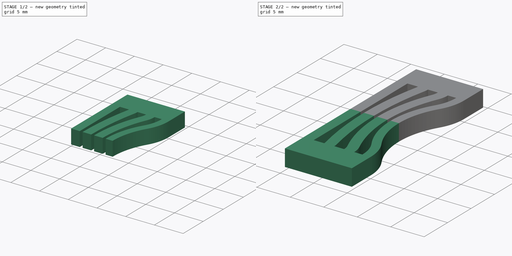
[diagram: build sequence overview — one tinted view per stage of 2, left to right]
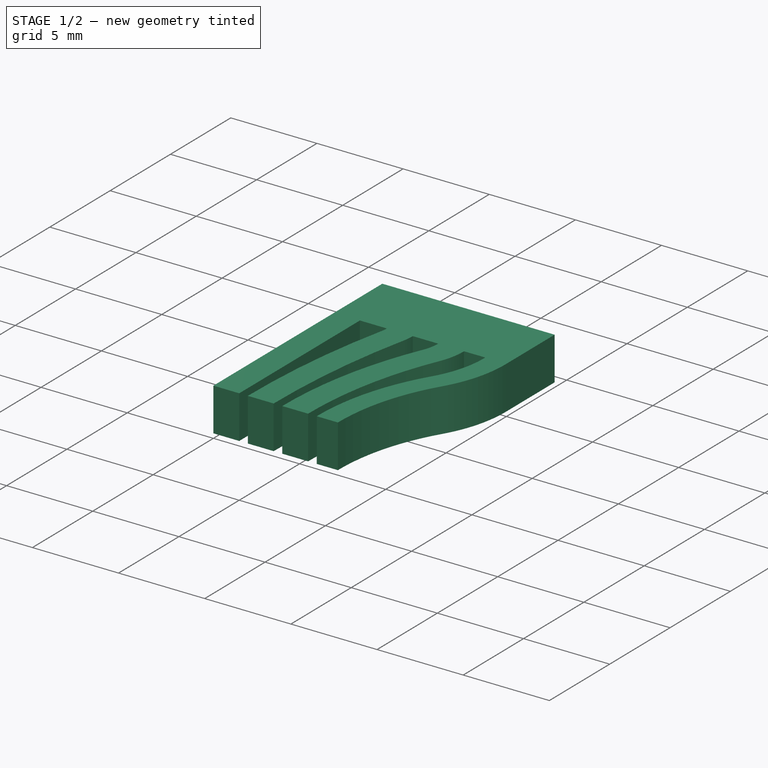
[diagram: stage 1 of 2 — iso view after this stage's code; geometry added in this stage tinted green]
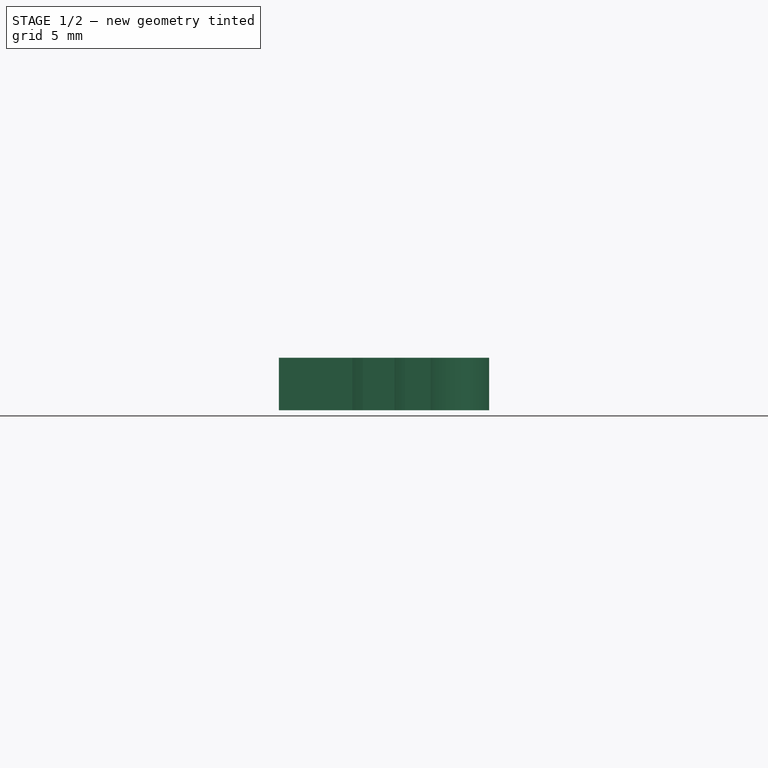
[diagram: stage 1 of 2 — front view after this stage's code; geometry added in this stage tinted green]
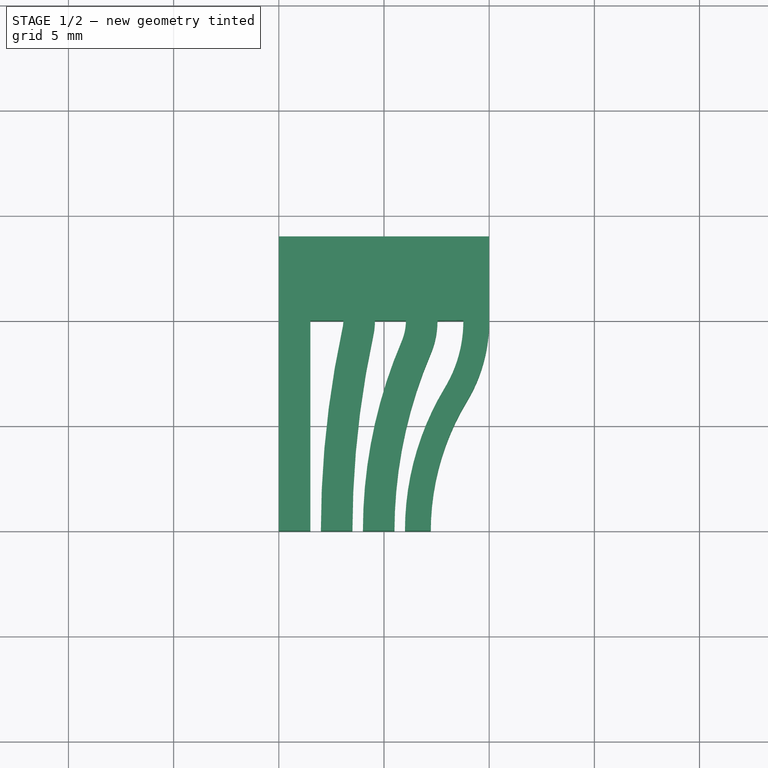
[diagram: stage 1 of 2 — top view after this stage's code; geometry added in this stage tinted green]
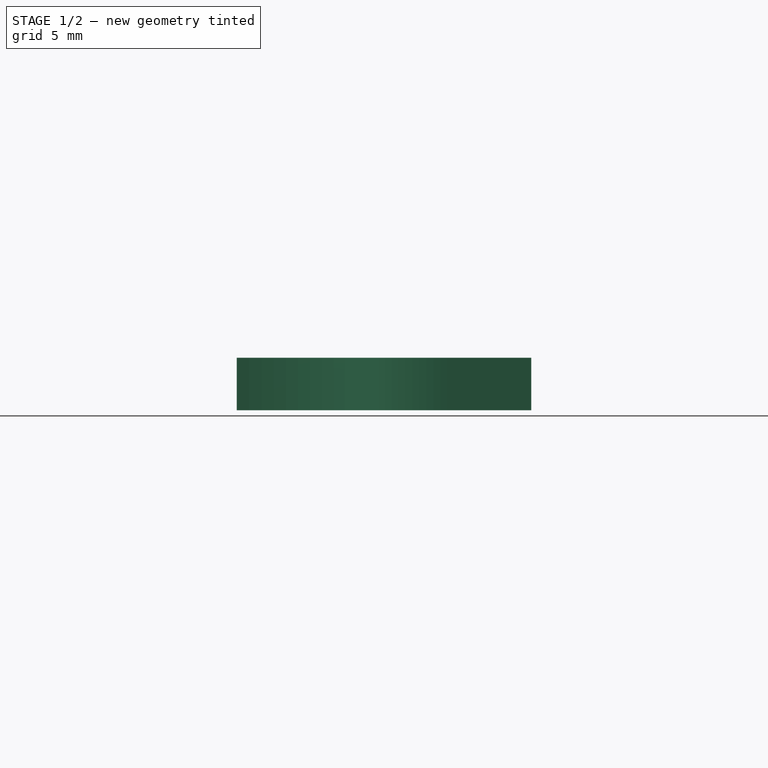
[diagram: stage 1 of 2 — right view after this stage's code; geometry added in this stage tinted green]
FCSTD DOCUMENT  (FreeCAD 0.20R29177 +426 (Git))
Label: SpringTest
License: All rights reserved
LicenseURL: http://en.wikipedia.org/wiki/All_rights_reserved
objects: Sketcher::SketchObject×1, PartDesign::Pad×1, PartDesign::Mirrored×1, PartDesign::Body×1
note: 5 computed .brp shape members not serialized (recipe doc carries the construction recipe); baked Part::Feature solids carry a one-line shape summary decoded from their .brp

FEATURE [Sketcher::SketchObject] Sketch
  FullyConstrained = false
  MapMode = 5
  Support = -> [XY_Plane]
  sketch-geometry (34):
    g0: LineSegment StartX=-3.5 StartY=9.91122e-06 StartZ=0 EndX=-5 EndY=0 EndZ=0
    g1: LineSegment StartX=-5 StartY=0 StartZ=0 EndX=-5 EndY=10 EndZ=0
    g2: LineSegment StartX=-5 StartY=14 StartZ=0 EndX=5 EndY=14 EndZ=0
    g3: LineSegment StartX=5 StartY=14 StartZ=0 EndX=5 EndY=10.0178 EndZ=0
    g4: LineSegment StartX=3.77247 StartY=10.0083 StartZ=0 EndX=2.54224 EndY=10 EndZ=0
    g5: LineSegment StartX=-5 StartY=10 StartZ=0 EndX=-5 EndY=14 EndZ=0
    g6: LineSegment StartX=-3.5 StartY=10 StartZ=0 EndX=-3.5 EndY=9.91122e-06 EndZ=0
    g7: ArcOfCircle CenterX=14.1448 CenterY=0 CenterZ=0 NormalX=0 NormalY=0 NormalZ=1 AngleXU=0 Radius=13.1488 StartAngle=2.59819 EndAngle=3.14159
    g8: ArcOfCircle CenterX=-2.35482 CenterY=9.96678 CenterZ=0 NormalX=0 NormalY=0 NormalZ=1 AngleXU=0 Radius=6.12743 StartAngle=5.73978 EndAngle=6.28997
    g9: ArcOfCircle CenterX=14.1448 CenterY=0 CenterZ=0 NormalX=0 NormalY=0 NormalZ=1 AngleXU=0 Radius=11.9213 StartAngle=2.59819 EndAngle=3.14159
    g10: ArcOfCircle CenterX=-2.35482 CenterY=9.96678 CenterZ=0 NormalX=0 NormalY=0 NormalZ=1 AngleXU=0 Radius=7.355 StartAngle=5.73978 EndAngle=6.29012
    g11: LineSegment StartX=3.5 StartY=10.0178 StartZ=0 EndX=5 EndY=10.0178 EndZ=0
    g12: LineSegment StartX=-5 StartY=10 StartZ=0 EndX=-3.5 EndY=10 EndZ=0
    g13: LineSegment StartX=2.88999 StartY=6.7986 StartZ=0 EndX=3.94073 EndY=6.16388 EndZ=0
    g14: LineSegment StartX=0.995967 StartY=1.6e-15 StartZ=0 EndX=2.22353 EndY=0 EndZ=0
    g15: ArcOfCircle CenterX=-1.48051 CenterY=10 CenterZ=0 NormalX=0 NormalY=0 NormalZ=1 AngleXU=0 Radius=2.52275 StartAngle=5.87976 EndAngle=6.28319
    g16: ArcOfCircle CenterX=21.9477 CenterY=0 CenterZ=0 NormalX=0 NormalY=0 NormalZ=1 AngleXU=0 Radius=22.9504 StartAngle=2.73817 EndAngle=3.14159
    g17: ArcOfCircle CenterX=-1.48051 CenterY=10 CenterZ=0 NormalX=0 NormalY=0 NormalZ=1 AngleXU=0 Radius=4.02275 StartAngle=5.87976 EndAngle=6.28319
    g18: ArcOfCircle CenterX=21.9477 CenterY=0 CenterZ=0 NormalX=0 NormalY=0 NormalZ=1 AngleXU=0 Radius=21.4504 StartAngle=2.73817 EndAngle=3.14159
    g19: LineSegment StartX=2.21931 StartY=8.42079 StartZ=0 EndX=0.839722 EndY=9.00964 EndZ=0
    g20: LineSegment StartX=2.54224 StartY=10 StartZ=0 EndX=1.04224 EndY=10 EndZ=0
    g21: LineSegment StartX=0.497311 StartY=2.6e-15 StartZ=0 EndX=-1.00269 EndY=2.6e-15 EndZ=0
    g22: ArcOfCircle CenterX=-3.5747 CenterY=10 CenterZ=0 NormalX=0 NormalY=0 NormalZ=1 AngleXU=0 Radius=3.14316 StartAngle=6.07003 EndAngle=6.28319
    g23: ArcOfCircle CenterX=42.6279 CenterY=0 CenterZ=0 NormalX=0 NormalY=0 NormalZ=1 AngleXU=0 Radius=44.1292 StartAngle=2.92844 EndAngle=3.14159
    g24: ArcOfCircle CenterX=-3.5747 CenterY=10 CenterZ=0 NormalX=0 NormalY=0 NormalZ=1 AngleXU=0 Radius=1.64316 StartAngle=6.07003 EndAngle=6.28319
    g25: ArcOfCircle CenterX=42.6279 CenterY=0 CenterZ=0 NormalX=0 NormalY=0 NormalZ=1 AngleXU=0 Radius=45.6292 StartAngle=2.92844 EndAngle=3.14159
    g26: LineSegment StartX=1.04224 StartY=10 StartZ=0 EndX=-0.431539 EndY=10 EndZ=0
    g27: LineSegment StartX=-3.5 StartY=10 StartZ=0 EndX=-1.93154 EndY=10 EndZ=0
    g28: LineSegment StartX=-1.93154 StartY=10 StartZ=0 EndX=-0.431539 EndY=10 EndZ=0
    g29: LineSegment StartX=-3.00134 StartY=0 StartZ=0 EndX=-1.50134 EndY=0 EndZ=0
    g30: LineSegment StartX=-0.502671 StartY=9.3351 StartZ=0 EndX=-1.96872 EndY=9.65241 EndZ=0
    g31: LineSegment StartX=-3.5 StartY=9.91122e-06 StartZ=0 EndX=-3.00134 EndY=0 EndZ=0
    g32: LineSegment StartX=-1.50134 StartY=0 StartZ=0 EndX=-1.00269 EndY=2.6e-15 EndZ=0
    g33: LineSegment StartX=0.995967 StartY=1.6e-15 StartZ=0 EndX=0.497311 EndY=2.6e-15 EndZ=0
  constraints (87):
    c: Coincident(g0,g1)
    c: Vertical(g1)
    c: PointOnObject(g0,g-1)
    c: DistanceY(g1,g1) = 10
    c: DistanceX(g1,g3) = 10
    c: Coincident(g2,g3)
    c: Coincident(g5,g2)
    c: Vertical(g3)
    c: Vertical(g5)
    c: Coincident(g1,g5)
    c: DistanceY(g5,g5) = 4
    c: Vertical(g6)
    c: Coincident(g0,g6)
    c: DistanceX(g0,g0) = 1.5
    c: PointOnObject(g7,g-1)
    c: Tangent(g8,g7) = 1.5708
    c: Coincident(g9,g7)
    c: Coincident(g10,g8)
    c: Horizontal(g11)
    c: Coincident(g12,g1)
    c: Horizontal(g12)
    c: Equal(g12,g0)
    c: Tangent(g10,g9) = 1.5708
    c: Coincident(g13,g7)
    c: Coincident(g13,g9)
    c: Coincident(g3,g10)
    c: Coincident(g3,g11)
    c: Symmetric(g2,g2,g-2)
    c: Equal(g11,g12)
    c: PointOnObject(g9,g-1)
    c: PointOnObject(g7,g-1)
    c: Coincident(g14,g7)
    c: Coincident(g14,g9)
    c: Tangent(g18,g17) = 1.5708
    c: Tangent(g16,g15) = 1.5708
    c: Coincident(g19,g17)
    c: Coincident(g19,g15)
    c: Perpendicular(g15,g19)
    c: Coincident(g20,g17)
    c: Horizontal(g20)
    c: Perpendicular(g16,g-1)
    c: Perpendicular(g18,g-1)
    c: Coincident(g21,g18)
    c: Coincident(g21,g16)
    c: Horizontal(g21)
    c: PointOnObject(g18,g-1)
    c: Coincident(g4,g8)
    c: Perpendicular(g8,g4)
    c: Coincident(g15,g20)
    c: Equal(g20,g19)
    c: Equal(g19,g11)
    c: Equal(g11,g21)
    c: Coincident(g26,g15)
    c: Coincident(g26,g22)
    c: Horizontal(g26)
    c: Perpendicular(g15,g26)
    c: Coincident(g17,g4)
    c: Coincident(g27,g6)
    c: Coincident(g27,g24)
    c: Horizontal(g27)
    c: Coincident(g28,g24)
    c: Coincident(g28,g22)
    c: Horizontal(g28)
    c: Coincident(g6,g12)
    c: Tangent(g25,g24) = 1.5708
    c: Tangent(g23,g22) = 1.5708
    c: PointOnObject(g23,g-1)
    c: PointOnObject(g25,g-1)
    c: Perpendicular(g25,g-1)
    c: Perpendicular(g23,g-1)
    c: Coincident(g29,g25)
    c: Coincident(g29,g23)
    c: Coincident(g30,g22)
    c: Coincident(g30,g24)
    c: Perpendicular(g22,g30)
    c: Equal(g28,g12)
    c: Equal(g30,g28)
    c: Equal(g30,g29)
    c: Perpendicular(g24,g27)
    c: Coincident(g31,g0)
    c: Coincident(g31,g25)
    c: Coincident(g32,g23)
    c: Coincident(g32,g16)
    c: Coincident(g33,g7)
    c: Coincident(g33,g18)
    c: Equal(g33,g32)
    c: Equal(g32,g31)
FEATURE [PartDesign::Pad] Pad
  Direction = (0,0,1)
  Length = 2.5
  Length2 = 10
  Profile = -> Sketch
  ReferenceAxis = -> Sketch [N_Axis]
  Type = 0
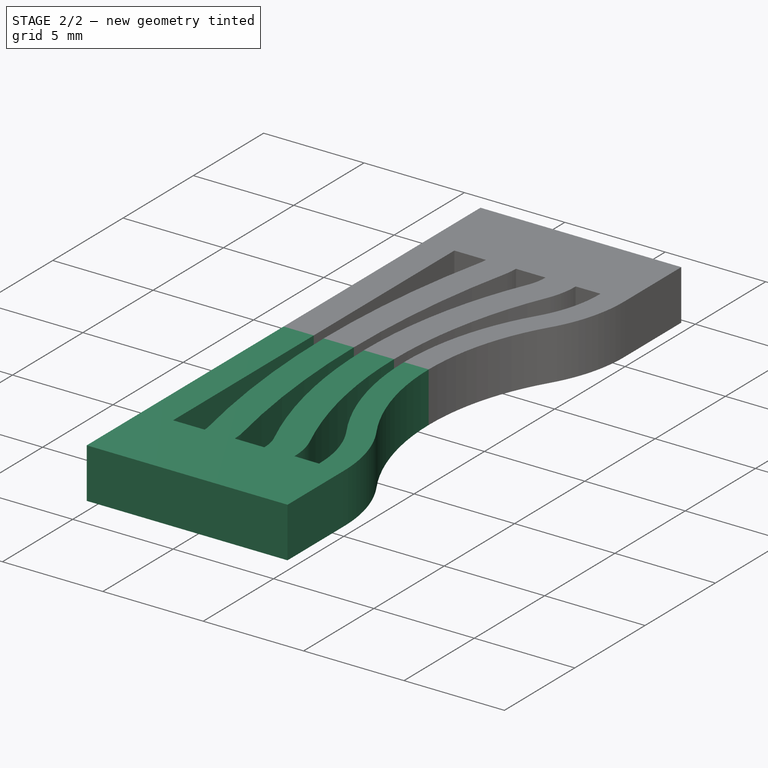
[diagram: stage 2 of 2 — iso view after this stage's code; geometry added in this stage tinted green]
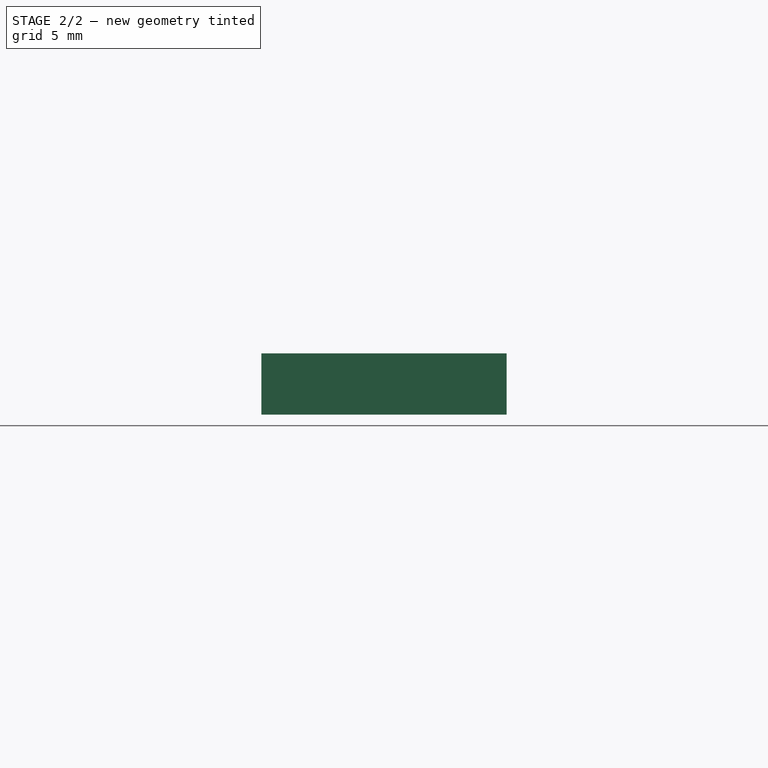
[diagram: stage 2 of 2 — front view after this stage's code; geometry added in this stage tinted green]
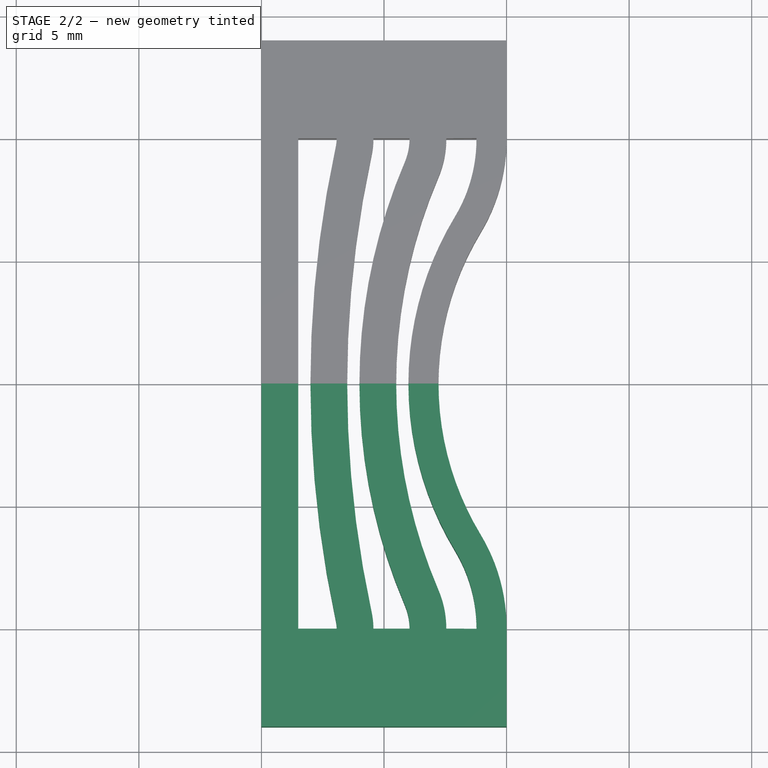
[diagram: stage 2 of 2 — top view after this stage's code; geometry added in this stage tinted green]
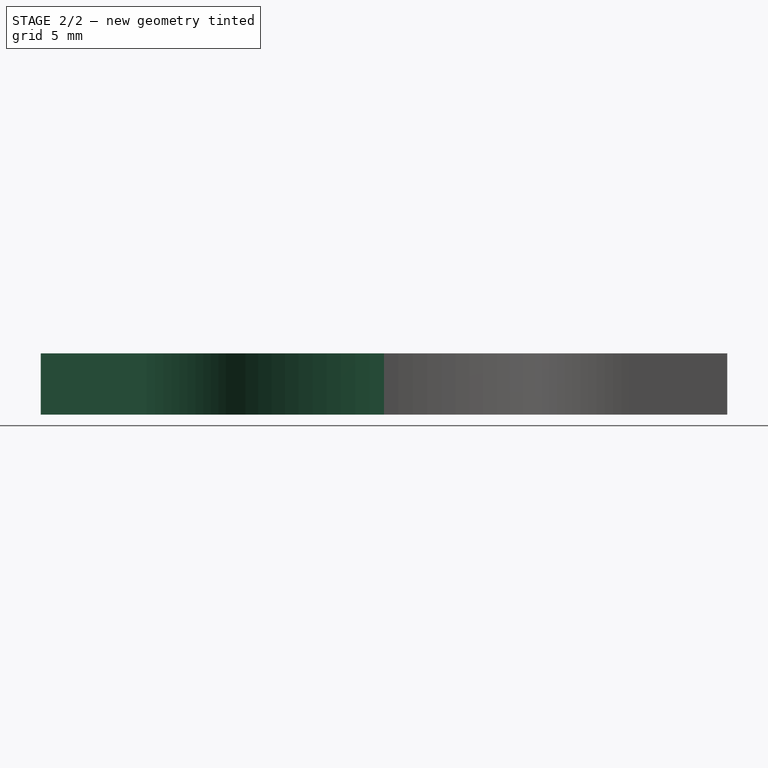
[diagram: stage 2 of 2 — right view after this stage's code; geometry added in this stage tinted green]
FEATURE [PartDesign::Mirrored] Mirrored
  BaseFeature = -> Pad
  MirrorPlane = -> Sketch [H_Axis]
  Originals = -> [Pad]
FEATURE [PartDesign::Body] Body
  Group = -> [Sketch,Pad,Mirrored]
  Origin = -> Origin
  Tip = -> Mirrored
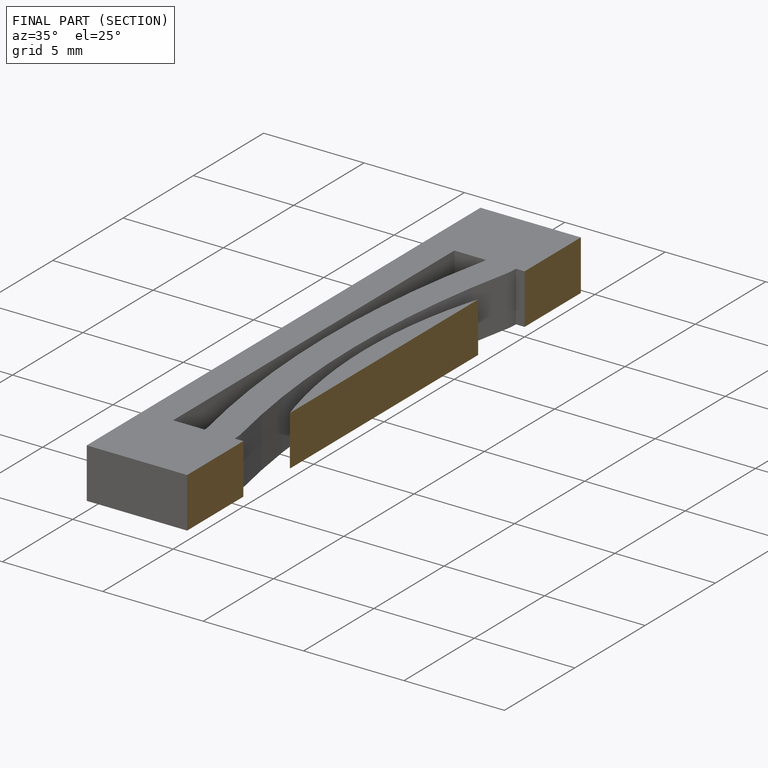
[diagram: finished part — half-section view (interior)]
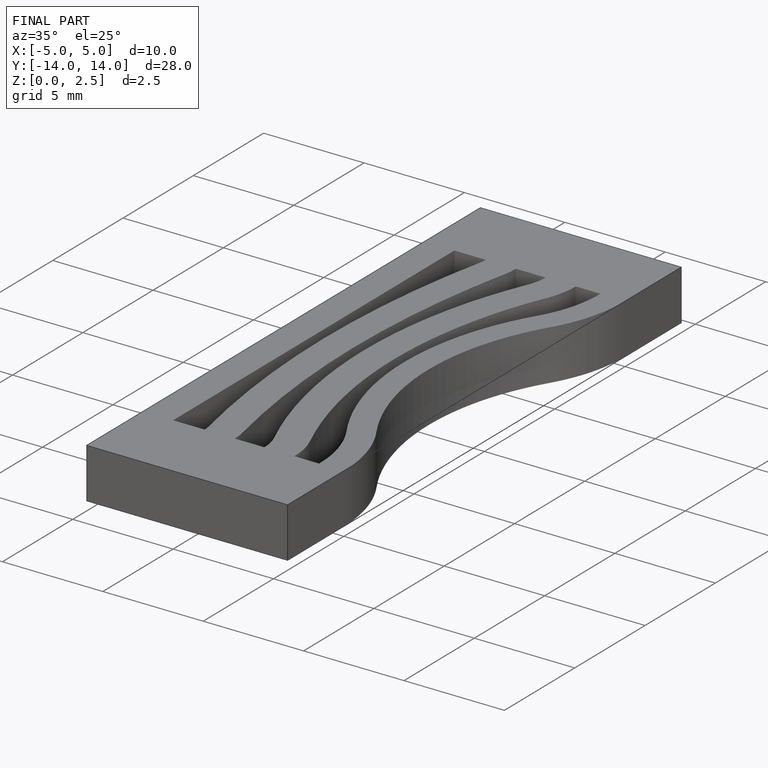
[diagram: finished part — iso view with bounding-box wireframe]
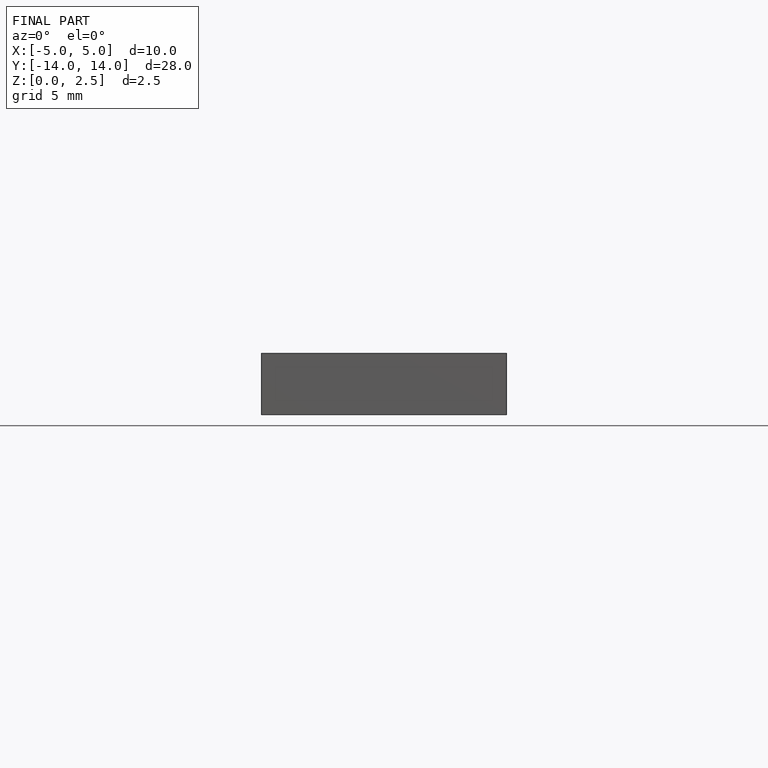
[diagram: finished part — front view with bounding-box wireframe]
